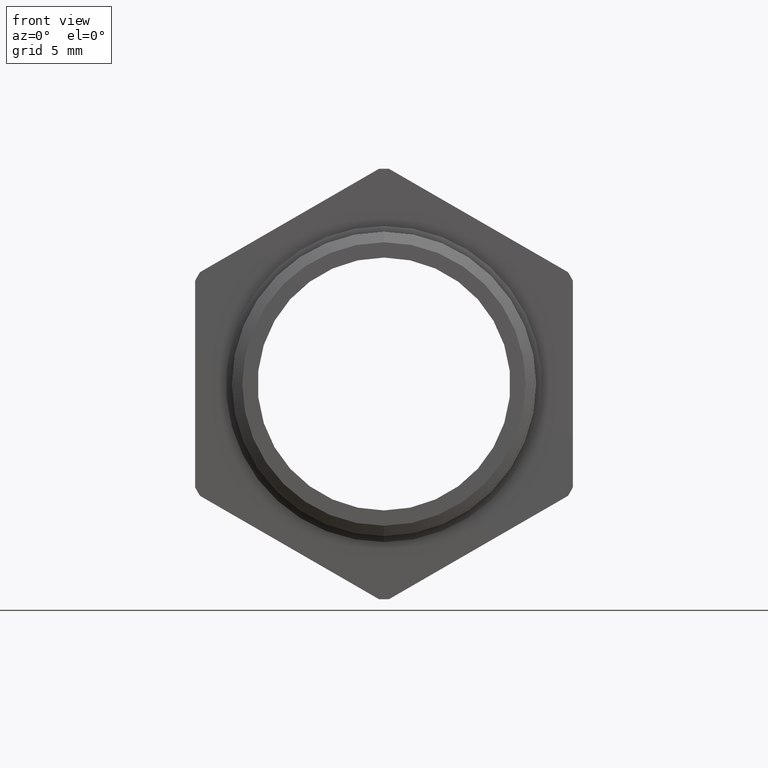
[diagram: clean part render]
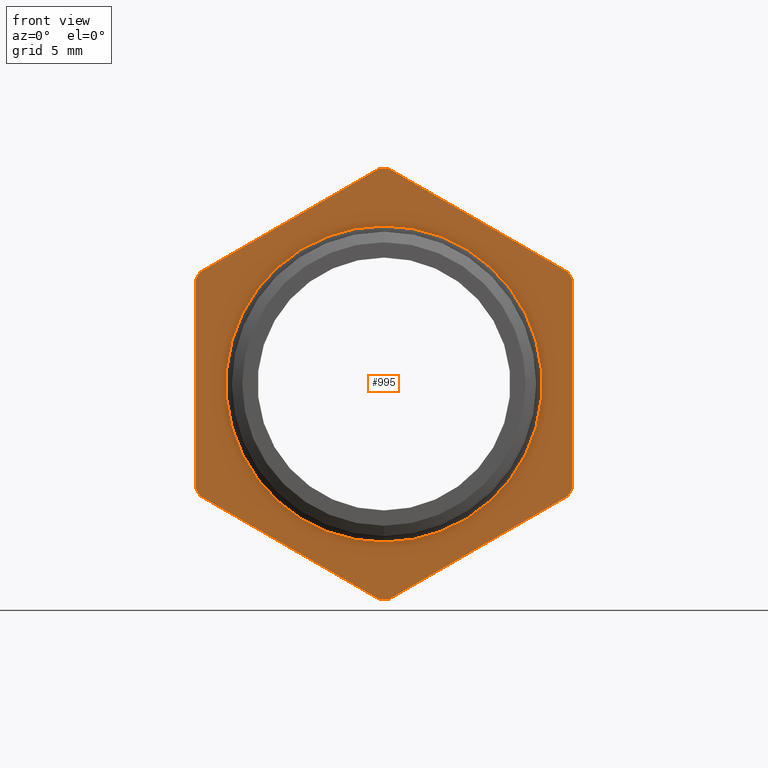
[diagram: same view with one face highlighted and labeled with its STEP entity id]
A machine part, front view. The second image highlights one B-rep face of the part: STEP entity #995.
In plain terms, the highlighted planar face has unit normal (0, -1, -0).
Its self-contained STEP definition (entity closure, byte-faithful):
#295 = CARTESIAN_POINT ( 'NONE',  ( 0.0000000000000000000, 0.7900000000000003700, 0.4099999999999999800 ) ) ;
#296 = DIRECTION ( 'NONE',  ( 0.0000000000000000000, 0.0000000000000000000, -1.000000000000000000 ) ) ;
#297 = DIRECTION ( 'NONE',  ( -0.0000000000000000000, -1.000000000000000000, -0.0000000000000000000 ) ) ;
#298 = CARTESIAN_POINT ( 'NONE',  ( 0.0000000000000000000, 0.7900000000000003700, 0.0000000000000000000 ) ) ;
#299 = AXIS2_PLACEMENT_3D ( 'NONE', #298, #297, #296 ) ;
#300 = CIRCLE ( 'NONE', #299, 0.4099999999999999800 ) ;
#301 = CARTESIAN_POINT ( 'NONE',  ( 5.021051876504148100E-017, 0.7900000000000003700, -0.4099999999999999800 ) ) ;
#443 = CARTESIAN_POINT ( 'NONE',  ( 0.4899999999999998200, 0.7900000000000000400, 0.2682050707947188400 ) ) ;
#875 = VERTEX_POINT ( 'NONE', #2016 ) ;
#877 = EDGE_CURVE ( 'NONE', #897, #875, #2075, .T. ) ;
#890 = VERTEX_POINT ( 'NONE', #2049 ) ;
#892 = EDGE_CURVE ( 'NONE', #3349, #890, #2047, .T. ) ;
#897 = VERTEX_POINT ( 'NONE', #2094 ) ;
#915 = VERTEX_POINT ( 'NONE', #2111 ) ;
#922 = VERTEX_POINT ( 'NONE', #2165 ) ;
#924 = EDGE_CURVE ( 'NONE', #946, #953, #2164, .T. ) ;
#929 = VERTEX_POINT ( 'NONE', #2149 ) ;
#936 = VERTEX_POINT ( 'NONE', #2137 ) ;
#939 = VERTEX_POINT ( 'NONE', #2196 ) ;
#941 = EDGE_CURVE ( 'NONE', #1361, #939, #2194, .T. ) ;
#946 = VERTEX_POINT ( 'NONE', #2180 ) ;
#953 = VERTEX_POINT ( 'NONE', #2223 ) ;
#958 = EDGE_CURVE ( 'NONE', #936, #946, #2221, .T. ) ;
#973 = EDGE_CURVE ( 'NONE', #922, #929, #2240, .T. ) ;
#979 = EDGE_CURVE ( 'NONE', #915, #922, #2280, .T. ) ;
#988 = EDGE_CURVE ( 'NONE', #890, #915, #2269, .T. ) ;
#992 = EDGE_CURVE ( 'NONE', #929, #936, #2314, .T. ) ;
#995 = ADVANCED_FACE ( 'NONE', ( #2310, #2309 ), #2308, .T. ) ;
#996 = EDGE_LOOP ( 'NONE', ( #997, #999 ) ) ;
#997 = ORIENTED_EDGE ( 'NONE', *, *, #998, .F. ) ;
#998 = EDGE_CURVE ( 'NONE', #1756, #1753, #2306, .T. ) ;
#999 = ORIENTED_EDGE ( 'NONE', *, *, #1755, .F. ) ;
#1000 = EDGE_LOOP ( 'NONE', ( #1001, #1002, #1003, #1004, #1005, #1006, #1066, #1067, #1068, #1069, #1070, #1071, #1072 ) ) ;
#1001 = ORIENTED_EDGE ( 'NONE', *, *, #877, .T. ) ;
#1002 = ORIENTED_EDGE ( 'NONE', *, *, #1018, .T. ) ;
#1003 = ORIENTED_EDGE ( 'NONE', *, *, #892, .T. ) ;
#1004 = ORIENTED_EDGE ( 'NONE', *, *, #988, .T. ) ;
#1005 = ORIENTED_EDGE ( 'NONE', *, *, #979, .T. ) ;
#1006 = ORIENTED_EDGE ( 'NONE', *, *, #973, .T. ) ;
#1008 = EDGE_CURVE ( 'NONE', #939, #897, #2298, .T. ) ;
#1018 = EDGE_CURVE ( 'NONE', #875, #3349, #2333, .T. ) ;
#1023 = EDGE_CURVE ( 'NONE', #953, #1364, #2322, .T. ) ;
#1066 = ORIENTED_EDGE ( 'NONE', *, *, #992, .T. ) ;
#1067 = ORIENTED_EDGE ( 'NONE', *, *, #958, .T. ) ;
#1068 = ORIENTED_EDGE ( 'NONE', *, *, #924, .T. ) ;
#1069 = ORIENTED_EDGE ( 'NONE', *, *, #1023, .T. ) ;
#1070 = ORIENTED_EDGE ( 'NONE', *, *, #1363, .T. ) ;
#1071 = ORIENTED_EDGE ( 'NONE', *, *, #941, .T. ) ;
#1072 = ORIENTED_EDGE ( 'NONE', *, *, #1008, .T. ) ;
#1361 = VERTEX_POINT ( 'NONE', #2825 ) ;
#1363 = EDGE_CURVE ( 'NONE', #1364, #1361, #2824, .T. ) ;
#1364 = VERTEX_POINT ( 'NONE', #2819 ) ;
#1753 = VERTEX_POINT ( 'NONE', #301 ) ;
#1755 = EDGE_CURVE ( 'NONE', #1753, #1756, #300, .T. ) ;
#1756 = VERTEX_POINT ( 'NONE', #295 ) ;
#1794 = DIRECTION ( 'NONE',  ( 0.0000000000000000000, 0.0000000000000000000, -1.000000000000000000 ) ) ;
#2015 = CARTESIAN_POINT ( 'NONE',  ( 0.0000000000000000000, 0.7900000000000000400, 0.0000000000000000000 ) ) ;
#2016 = CARTESIAN_POINT ( 'NONE',  ( 0.4899999999999998200, 0.7900000000000000400, -0.2682050707947188400 ) ) ;
#2044 = DIRECTION ( 'NONE',  ( -0.0000000000000000000, -1.000000000000000000, -0.0000000000000000000 ) ) ;
#2045 = CARTESIAN_POINT ( 'NONE',  ( 0.0000000000000000000, 0.7900000000000000400, 0.0000000000000000000 ) ) ;
#2046 = AXIS2_PLACEMENT_3D ( 'NONE', #2045, #2044, #1794 ) ;
#2047 = CIRCLE ( 'NONE', #2046, 0.5586000000000001000 ) ;
#2049 = CARTESIAN_POINT ( 'NONE',  ( 0.4772724047320303600, 0.7900000000000000400, 0.2902499124570153700 ) ) ;
#2072 = DIRECTION ( 'NONE',  ( 0.0000000000000000000, 0.0000000000000000000, -1.000000000000000000 ) ) ;
#2073 = DIRECTION ( 'NONE',  ( -0.0000000000000000000, -1.000000000000000000, -0.0000000000000000000 ) ) ;
#2074 = AXIS2_PLACEMENT_3D ( 'NONE', #2015, #2073, #2072 ) ;
#2075 = CIRCLE ( 'NONE', #2074, 0.5586000000000001000 ) ;
#2094 = CARTESIAN_POINT ( 'NONE',  ( 0.4772724047320301400, 0.7900000000000000400, -0.2902499124570156500 ) ) ;
#2111 = CARTESIAN_POINT ( 'NONE',  ( 0.01272759526796979700, 0.7900000000000000400, 0.5584549832517342600 ) ) ;
#2137 = CARTESIAN_POINT ( 'NONE',  ( -0.4899999999999999900, 0.7900000000000000400, 0.2682050707947186100 ) ) ;
#2149 = CARTESIAN_POINT ( 'NONE',  ( -0.4772724047320300300, 0.7900000000000000400, 0.2902499124570157600 ) ) ;
#2160 = DIRECTION ( 'NONE',  ( 0.0000000000000000000, 0.0000000000000000000, -1.000000000000000000 ) ) ;
#2161 = DIRECTION ( 'NONE',  ( -0.0000000000000000000, -1.000000000000000000, -0.0000000000000000000 ) ) ;
#2162 = CARTESIAN_POINT ( 'NONE',  ( 0.0000000000000000000, 0.7900000000000000400, 0.0000000000000000000 ) ) ;
#2163 = AXIS2_PLACEMENT_3D ( 'NONE', #2162, #2161, #2160 ) ;
#2164 = CIRCLE ( 'NONE', #2163, 0.5586000000000001000 ) ;
#2165 = CARTESIAN_POINT ( 'NONE',  ( -0.01272759526796984200, 0.7900000000000000400, 0.5584549832517341500 ) ) ;
#2180 = CARTESIAN_POINT ( 'NONE',  ( -0.4899999999999999900, 0.7900000000000000400, -0.2682050707947186100 ) ) ;
#2190 = DIRECTION ( 'NONE',  ( 0.0000000000000000000, 0.0000000000000000000, -1.000000000000000000 ) ) ;
#2191 = DIRECTION ( 'NONE',  ( -0.0000000000000000000, -1.000000000000000000, -0.0000000000000000000 ) ) ;
#2192 = CARTESIAN_POINT ( 'NONE',  ( 0.0000000000000000000, 0.7900000000000000400, 0.0000000000000000000 ) ) ;
#2193 = AXIS2_PLACEMENT_3D ( 'NONE', #2192, #2191, #2190 ) ;
#2194 = CIRCLE ( 'NONE', #2193, 0.5586000000000001000 ) ;
#2196 = CARTESIAN_POINT ( 'NONE',  ( 0.01272759526796965600, 0.7900000000000000400, -0.5584549832517342600 ) ) ;
#2212 = DIRECTION ( 'NONE',  ( 0.0000000000000000000, 0.0000000000000000000, -1.000000000000000000 ) ) ;
#2213 = VECTOR ( 'NONE', #2212, 39.37007874015748100 ) ;
#2220 = CARTESIAN_POINT ( 'NONE',  ( -0.4899999999999999900, 0.7900000000000000400, 0.2829016319029166700 ) ) ;
#2221 = LINE ( 'NONE', #2220, #2213 ) ;
#2223 = CARTESIAN_POINT ( 'NONE',  ( -0.4772724047320303100, 0.7900000000000000400, -0.2902499124570155400 ) ) ;
#2231 = DIRECTION ( 'NONE',  ( -0.8660254037844386000, 0.0000000000000000000, -0.4999999999999998300 ) ) ;
#2232 = VECTOR ( 'NONE', #2231, 39.37007874015748900 ) ;
#2239 = CARTESIAN_POINT ( 'NONE',  ( 5.958674263158903000E-017, 0.7900000000000000400, 0.5658032638058332300 ) ) ;
#2240 = LINE ( 'NONE', #2239, #2232 ) ;
#2258 = CARTESIAN_POINT ( 'NONE',  ( 0.0000000000000000000, 0.7900000000000000400, 0.0000000000000000000 ) ) ;
#2260 = DIRECTION ( 'NONE',  ( -0.8660254037844384900, 0.0000000000000000000, 0.5000000000000001100 ) ) ;
#2261 = VECTOR ( 'NONE', #2260, 39.37007874015748900 ) ;
#2268 = CARTESIAN_POINT ( 'NONE',  ( 0.4899999999999998200, 0.7900000000000000400, 0.2829016319029166200 ) ) ;
#2269 = LINE ( 'NONE', #2268, #2261 ) ;
#2276 = DIRECTION ( 'NONE',  ( 0.0000000000000000000, 0.0000000000000000000, -1.000000000000000000 ) ) ;
#2277 = DIRECTION ( 'NONE',  ( -0.0000000000000000000, -1.000000000000000000, -0.0000000000000000000 ) ) ;
#2278 = CARTESIAN_POINT ( 'NONE',  ( 0.0000000000000000000, 0.7900000000000000400, 0.0000000000000000000 ) ) ;
#2279 = AXIS2_PLACEMENT_3D ( 'NONE', #2278, #2277, #2276 ) ;
#2280 = CIRCLE ( 'NONE', #2279, 0.5586000000000001000 ) ;
#2295 = DIRECTION ( 'NONE',  ( 0.8660254037844386000, 0.0000000000000000000, 0.4999999999999998300 ) ) ;
#2296 = VECTOR ( 'NONE', #2295, 39.37007874015748900 ) ;
#2297 = CARTESIAN_POINT ( 'NONE',  ( -7.477969232229987200E-017, 0.7900000000000000400, -0.5658032638058332300 ) ) ;
#2298 = LINE ( 'NONE', #2297, #2296 ) ;
#2299 = DIRECTION ( 'NONE',  ( 0.0000000000000000000, 0.0000000000000000000, -1.000000000000000000 ) ) ;
#2300 = DIRECTION ( 'NONE',  ( -0.0000000000000000000, -1.000000000000000000, -0.0000000000000000000 ) ) ;
#2301 = CARTESIAN_POINT ( 'NONE',  ( 0.0000000000000000000, 0.7900000000000003700, 0.0000000000000000000 ) ) ;
#2302 = AXIS2_PLACEMENT_3D ( 'NONE', #2301, #2300, #2299 ) ;
#2303 = DIRECTION ( 'NONE',  ( 0.0000000000000000000, 0.0000000000000000000, -1.000000000000000000 ) ) ;
#2304 = DIRECTION ( 'NONE',  ( 0.0000000000000000000, -1.000000000000000000, -0.0000000000000000000 ) ) ;
#2305 = AXIS2_PLACEMENT_3D ( 'NONE', #2307, #2304, #2303 ) ;
#2306 = CIRCLE ( 'NONE', #2302, 0.4099999999999999800 ) ;
#2307 = CARTESIAN_POINT ( 'NONE',  ( 0.4099999999999999800, 0.7900000000000000400, 0.0000000000000000000 ) ) ;
#2308 = PLANE ( 'NONE',  #2305 ) ;
#2309 = FACE_OUTER_BOUND ( 'NONE', #1000, .T. ) ;
#2310 = FACE_BOUND ( 'NONE', #996, .T. ) ;
#2311 = DIRECTION ( 'NONE',  ( 0.0000000000000000000, 0.0000000000000000000, -1.000000000000000000 ) ) ;
#2312 = DIRECTION ( 'NONE',  ( -0.0000000000000000000, -1.000000000000000000, -0.0000000000000000000 ) ) ;
#2313 = AXIS2_PLACEMENT_3D ( 'NONE', #2258, #2312, #2311 ) ;
#2314 = CIRCLE ( 'NONE', #2313, 0.5586000000000001000 ) ;
#2321 = CARTESIAN_POINT ( 'NONE',  ( -0.4899999999999999900, 0.7900000000000000400, -0.2829016319029166700 ) ) ;
#2322 = LINE ( 'NONE', #2321, #2364 ) ;
#2324 = DIRECTION ( 'NONE',  ( 0.0000000000000000000, 0.0000000000000000000, 1.000000000000000000 ) ) ;
#2325 = VECTOR ( 'NONE', #2324, 39.37007874015748100 ) ;
#2332 = CARTESIAN_POINT ( 'NONE',  ( 0.4899999999999998200, 0.7900000000000000400, -0.2829016319029167300 ) ) ;
#2333 = LINE ( 'NONE', #2332, #2325 ) ;
#2363 = DIRECTION ( 'NONE',  ( 0.8660254037844386000, 0.0000000000000000000, -0.5000000000000000000 ) ) ;
#2364 = VECTOR ( 'NONE', #2363, 39.37007874015748900 ) ;
#2819 = CARTESIAN_POINT ( 'NONE',  ( -0.01272759526796979700, 0.7900000000000000400, -0.5584549832517342600 ) ) ;
#2820 = DIRECTION ( 'NONE',  ( 0.0000000000000000000, 0.0000000000000000000, -1.000000000000000000 ) ) ;
#2821 = DIRECTION ( 'NONE',  ( -0.0000000000000000000, -1.000000000000000000, -0.0000000000000000000 ) ) ;
#2822 = CARTESIAN_POINT ( 'NONE',  ( 0.0000000000000000000, 0.7900000000000000400, 0.0000000000000000000 ) ) ;
#2823 = AXIS2_PLACEMENT_3D ( 'NONE', #2822, #2821, #2820 ) ;
#2824 = CIRCLE ( 'NONE', #2823, 0.5586000000000001000 ) ;
#2825 = CARTESIAN_POINT ( 'NONE',  ( 0.0000000000000000000, 0.7900000000000000400, -0.5586000000000002100 ) ) ;
#3349 = VERTEX_POINT ( 'NONE', #443 ) ;